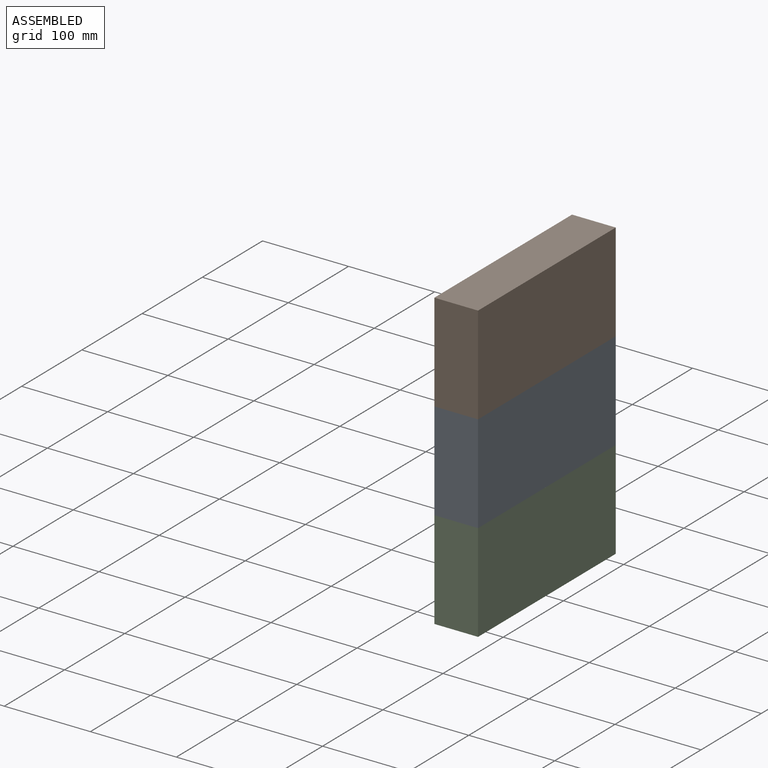
[diagram: assembled view]
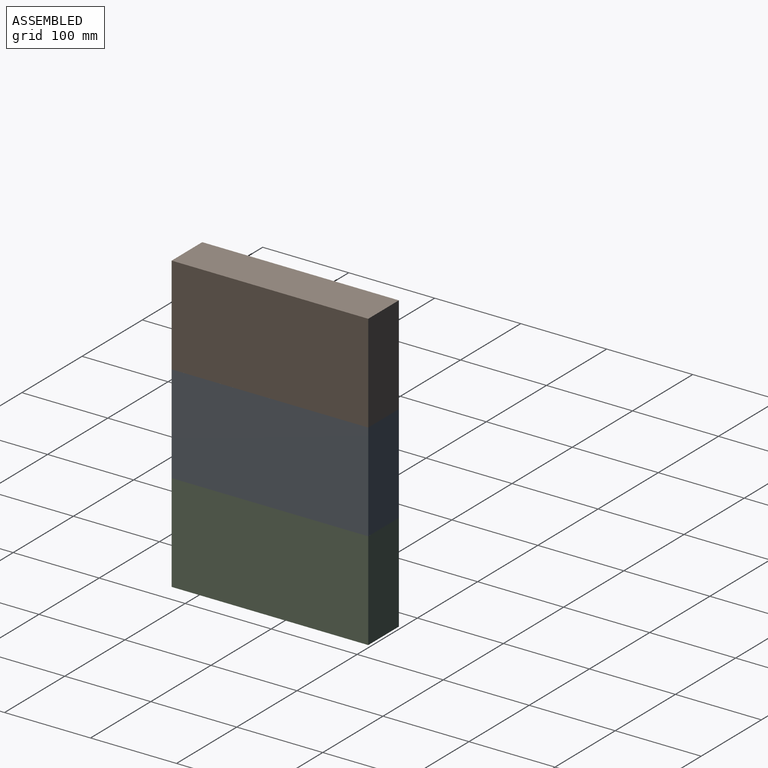
[diagram: assembled view, second angle]
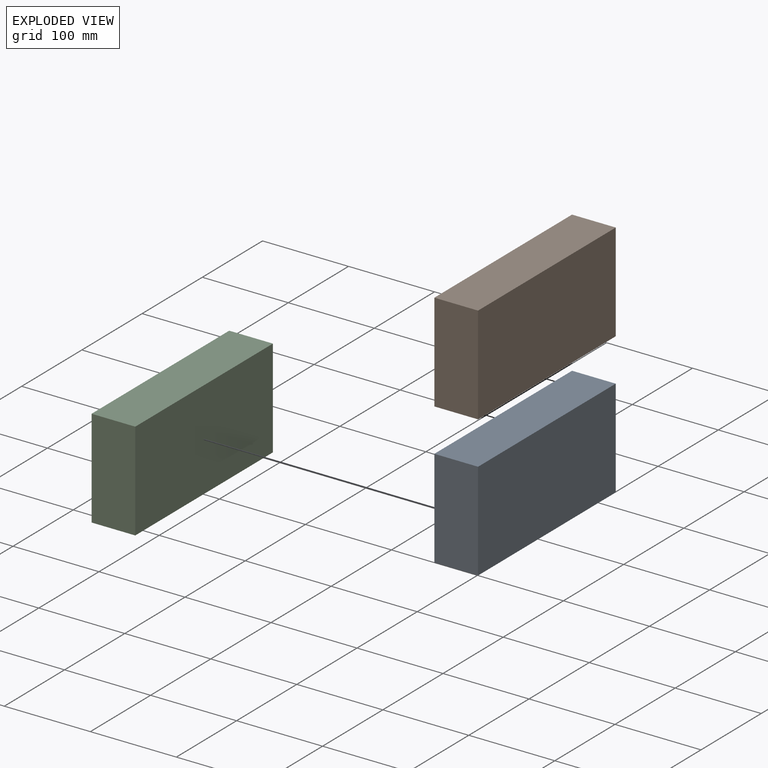
[diagram: exploded view]
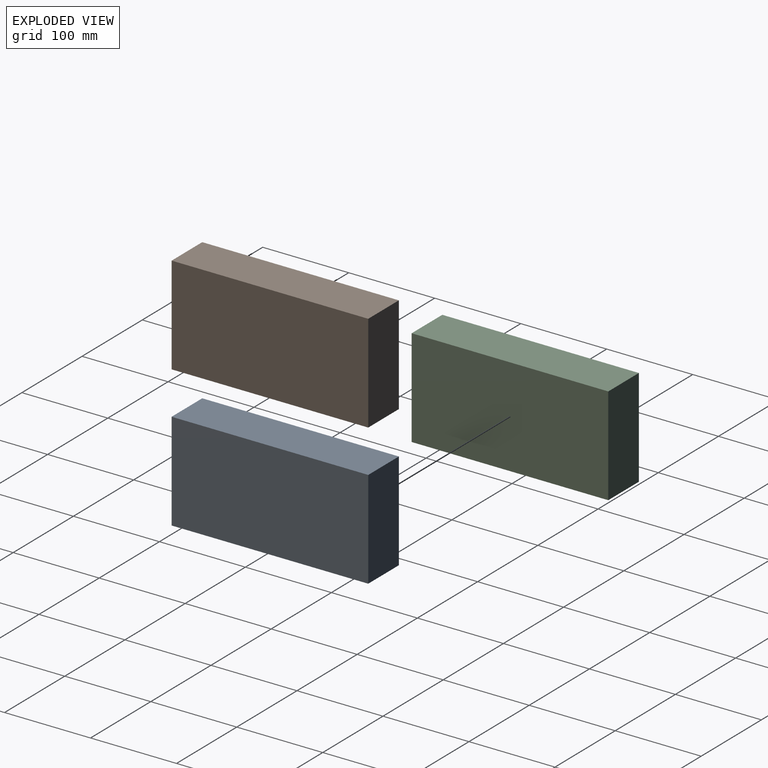
[diagram: exploded view, second angle]
ASSEMBLY  parts=3 mates=2
PART A: 6 faces, bbox 114.3x228.6x50.8 mm
  f0: plane 114.3x50.8mm, normal (0,-1,0), area 5806.4mm2, adj f1,f3,f4,f5
  f1: plane 228.6x50.8mm, normal (1,0,0), area 11612.9mm2, adj f0,f2,f4,f5
  f2: plane 114.3x50.8mm, normal (0,1,0), area 5806.4mm2, adj f1,f3,f4,f5
  f3: plane 228.6x50.8mm, normal (-1,0,0), area 11612.9mm2, adj f0,f2,f4,f5
  f4: plane 228.6x114.3mm, normal (0,0,1), area 26129mm2, adj f0,f1,f2,f3
  f5: plane 228.6x114.3mm, normal (0,0,-1), area 26129mm2, adj f0,f1,f2,f3
PART B: same geometry as A
PART C: same geometry as A
PLACE A rot(axis=(0,1,0),90deg) t=(436.97,-609.96,171.45)mm
PLACE B rot(axis=(0,1,0),90deg) t=(436.97,-609.96,285.75)mm
PLACE C rot(axis=(-0.71,0,0.71),180deg) t=(487.77,-609.96,57.15)mm
MATE fastened A.f4 <-> C.f5  axis (1,0,0) through (487.77,-609.96,114.3)mm
MATE fastened B.f4 <-> A.f4  axis (1,0,0) through (487.77,-609.96,228.6)mm
